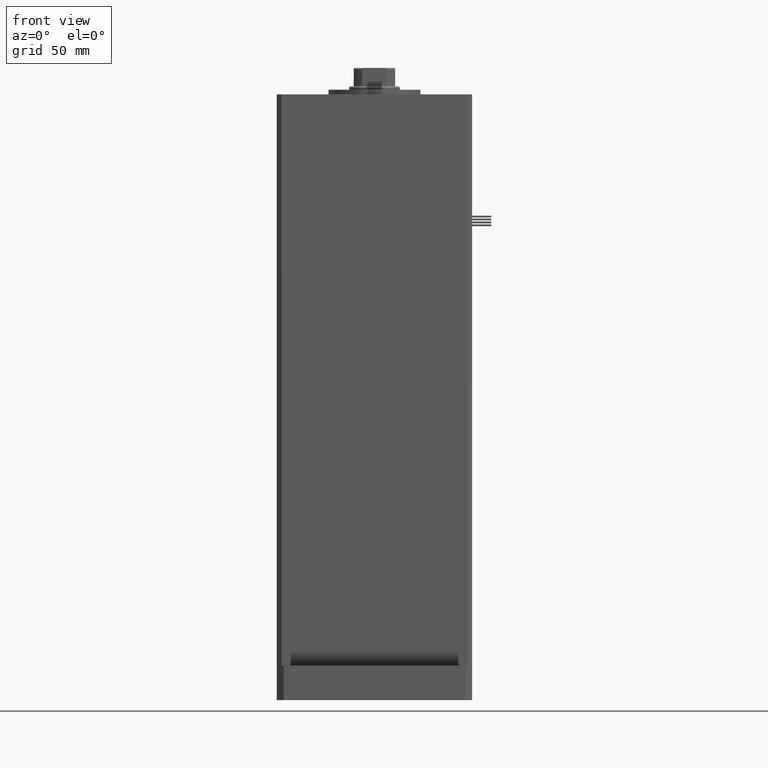
[diagram: clean part render]
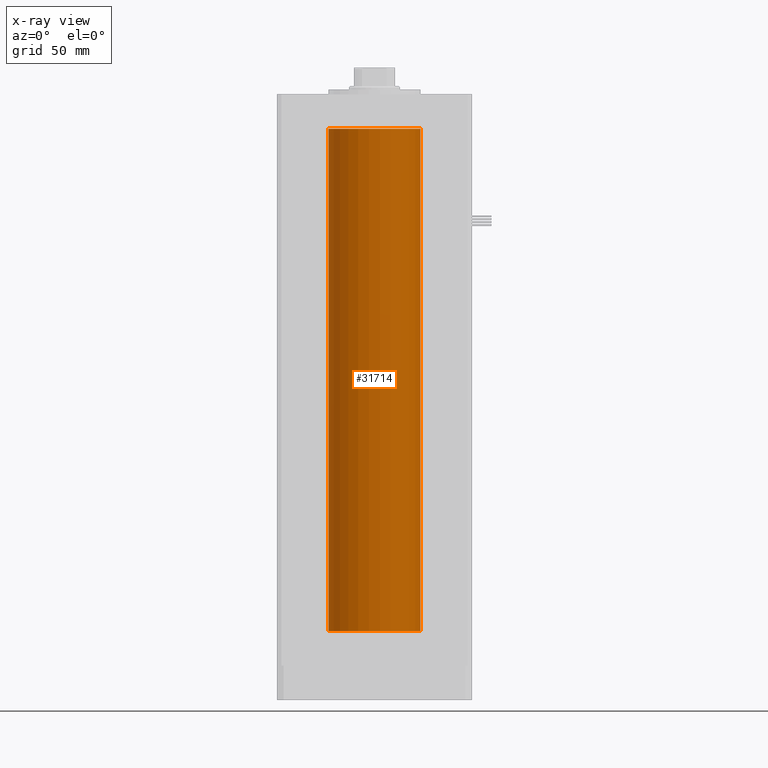
[diagram: x-ray — body ghosted, one internal face saturated and labeled with its STEP entity id]
A machine part, front view, then the same camera in x-ray: the body is ghosted and one INTERNAL B-rep face — a face not visible from any outside direction — is saturated and labeled: STEP entity #31714.
In plain terms, the highlighted cylindrical surface (partial cylindrical patch) has radius 20 mm, axis along (-0, -0, -1).
Its self-contained STEP definition (entity closure, byte-faithful):
#2422 = FACE_OUTER_BOUND ( 'NONE', #32708, .T. ) ;
#5905 = VERTEX_POINT ( 'NONE', #33749 ) ;
#6919 = EDGE_CURVE ( 'NONE', #47553, #11414, #40247, .T. ) ;
#7491 = VECTOR ( 'NONE', #19334, 1000.000000000000000 ) ;
#7718 = DIRECTION ( 'NONE',  ( -0.000000000000000000, 0.000000000000000000, 1.000000000000000000 ) ) ;
#7922 = ORIENTED_EDGE ( 'NONE', *, *, #6919, .T. ) ;
#8671 = DIRECTION ( 'NONE',  ( -1.000000000000000000, 0.000000000000000000, 0.000000000000000000 ) ) ;
#9609 = ORIENTED_EDGE ( 'NONE', *, *, #12273, .F. ) ;
#9936 = CARTESIAN_POINT ( 'NONE',  ( -20.00000000000000000, 0.000000000000000000, 218.5000000000000000 ) ) ;
#11414 = VERTEX_POINT ( 'NONE', #27432 ) ;
#12273 = EDGE_CURVE ( 'NONE', #54619, #5905, #44950, .T. ) ;
#12390 = CARTESIAN_POINT ( 'NONE',  ( 0.000000000000000000, 0.000000000000000000, 218.5000000000000000 ) ) ;
#14159 = DIRECTION ( 'NONE',  ( 1.000000000000000000, 0.000000000000000000, 0.000000000000000000 ) ) ;
#15867 = CARTESIAN_POINT ( 'NONE',  ( -20.00000000000000000, 0.000000000000000000, 218.5000000000000000 ) ) ;
#16464 = AXIS2_PLACEMENT_3D ( 'NONE', #12390, #35388, #8671 ) ;
#16874 = ORIENTED_EDGE ( 'NONE', *, *, #40460, .F. ) ;
#16922 = VECTOR ( 'NONE', #45939, 1000.000000000000000 ) ;
#19334 = DIRECTION ( 'NONE',  ( -0.000000000000000000, -0.000000000000000000, -1.000000000000000000 ) ) ;
#20793 = DIRECTION ( 'NONE',  ( 1.000000000000000000, 0.000000000000000000, 0.000000000000000000 ) ) ;
#26956 = CARTESIAN_POINT ( 'NONE',  ( 0.000000000000000000, 0.000000000000000000, 218.5000000000000000 ) ) ;
#27432 = CARTESIAN_POINT ( 'NONE',  ( 20.00000000000000000, 2.449293598294706513E-15, 0.000000000000000000 ) ) ;
#28571 = CARTESIAN_POINT ( 'NONE',  ( 20.00000000000000000, 2.449293598294706513E-15, 218.5000000000000000 ) ) ;
#30049 = EDGE_CURVE ( 'NONE', #54619, #47553, #54499, .T. ) ;
#31714 = ADVANCED_FACE ( 'NONE', ( #2422 ), #34011, .F. ) ;
#32708 = EDGE_LOOP ( 'NONE', ( #36478, #7922, #16874, #9609 ) ) ;
#33749 = CARTESIAN_POINT ( 'NONE',  ( -20.00000000000000000, 0.000000000000000000, 0.000000000000000000 ) ) ;
#34011 = CYLINDRICAL_SURFACE ( 'NONE', #16464, 20.00000000000000000 ) ;
#35388 = DIRECTION ( 'NONE',  ( -0.000000000000000000, -0.000000000000000000, -1.000000000000000000 ) ) ;
#36478 = ORIENTED_EDGE ( 'NONE', *, *, #30049, .T. ) ;
#38547 = CIRCLE ( 'NONE', #53981, 20.00000000000000000 ) ;
#38761 = CARTESIAN_POINT ( 'NONE',  ( 20.00000000000000000, 2.449293598294706513E-15, 218.5000000000000000 ) ) ;
#40247 = LINE ( 'NONE', #28571, #16922 ) ;
#40460 = EDGE_CURVE ( 'NONE', #5905, #11414, #38547, .T. ) ;
#44950 = LINE ( 'NONE', #9936, #7491 ) ;
#45939 = DIRECTION ( 'NONE',  ( -0.000000000000000000, -0.000000000000000000, -1.000000000000000000 ) ) ;
#46413 = CARTESIAN_POINT ( 'NONE',  ( 0.000000000000000000, 0.000000000000000000, 0.000000000000000000 ) ) ;
#47553 = VERTEX_POINT ( 'NONE', #38761 ) ;
#47616 = AXIS2_PLACEMENT_3D ( 'NONE', #26956, #48587, #14159 ) ;
#48587 = DIRECTION ( 'NONE',  ( -0.000000000000000000, 0.000000000000000000, 1.000000000000000000 ) ) ;
#53981 = AXIS2_PLACEMENT_3D ( 'NONE', #46413, #7718, #20793 ) ;
#54499 = CIRCLE ( 'NONE', #47616, 20.00000000000000000 ) ;
#54619 = VERTEX_POINT ( 'NONE', #15867 ) ;